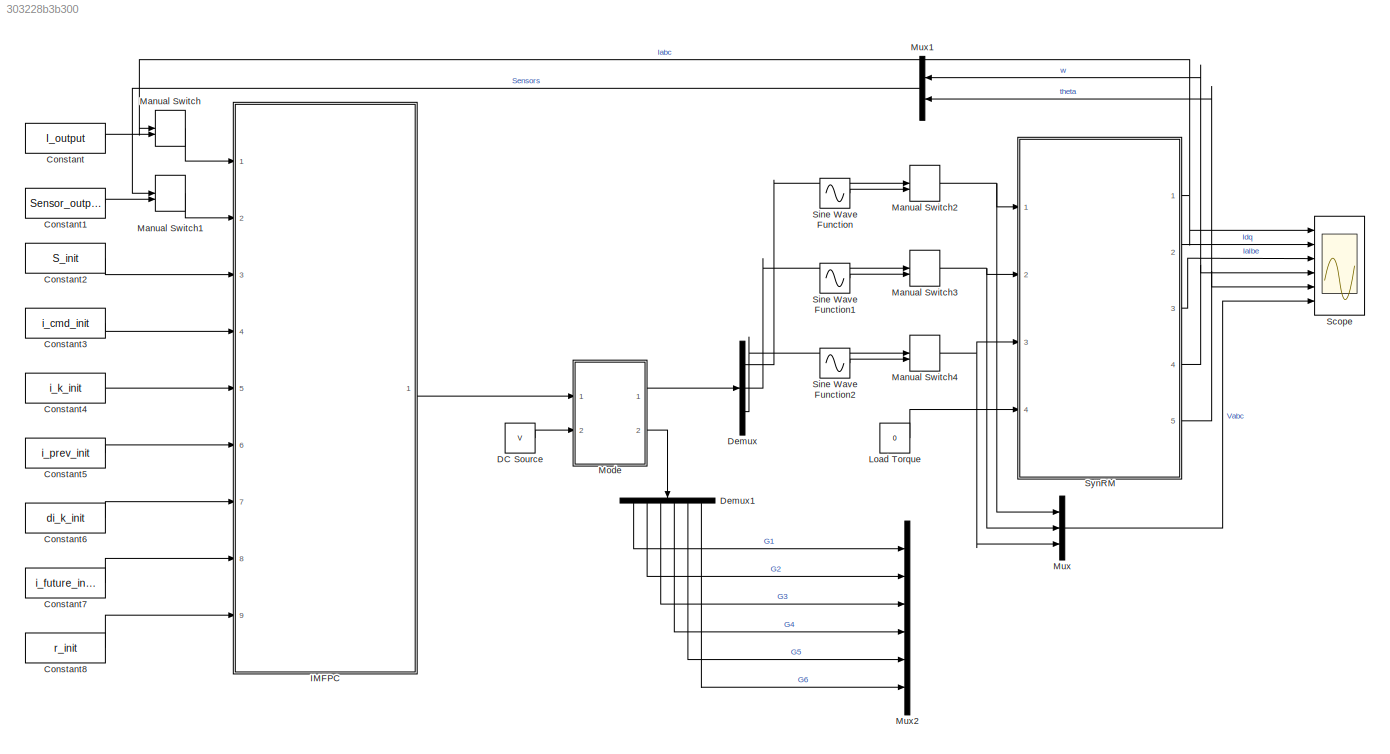
MODEL slx_303228b3b300
KIND model
CONFIG AbsTol = auto
CONFIG FixedStep = 1e-6
CONFIG MaxStep = auto
CONFIG MinStep = auto
CONFIG RelTol = 1e-3
CONFIG SampleTimeConstraint = Unconstrained
CONFIG Solver = VariableStepAuto
CONFIG SolverMode = Auto
CONFIG SolverName = VariableStepAuto
CONFIG StartTime = 0.0
CONFIG StopTime = 5
BLOCK [Constant] Constant
  SampleTime = Ts
  Value = I_output
  VectorParams1D = off
BLOCK [Constant] Constant1
  SampleTime = Ts
  Value = Sensor_output
  VectorParams1D = off
BLOCK [Constant] Constant2
  SampleTime = Ts
  Value = S_init
  VectorParams1D = off
BLOCK [Constant] Constant3
  SampleTime = Ts
  Value = i_cmd_init
  VectorParams1D = off
BLOCK [Constant] Constant4
  SampleTime = Ts
  Value = i_k_init
  VectorParams1D = off
BLOCK [Constant] Constant5
  SampleTime = Ts
  Value = i_prev_init
BLOCK [Constant] Constant6
  SampleTime = Ts
  Value = di_k_init
BLOCK [Constant] Constant7
  SampleTime = Ts
  Value = i_future_init
BLOCK [Constant] Constant8
  SampleTime = Ts
  Value = r_init
BLOCK [Constant] DC Source
  SampleTime = Ts
  Value = V
BLOCK [Demux] Demux
  DisplayOption = bar
  Outputs = 3
  Ports = [1, 3]
BLOCK [Demux] Demux1
  DisplayOption = bar
  Outputs = 6
  Ports = [1, 6]
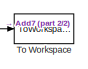
[diagram: IMFPC - part 1/2, top right region]
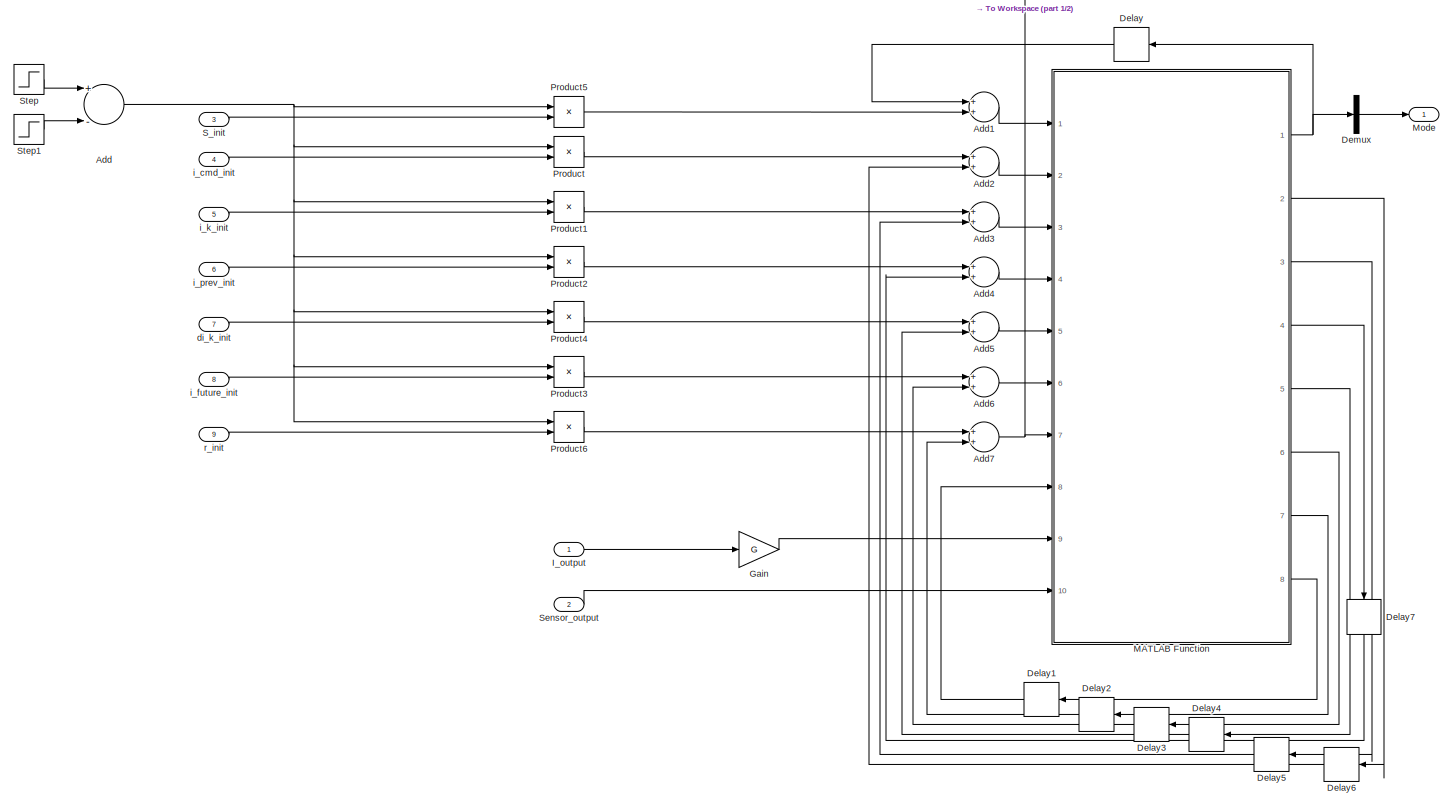
[diagram: IMFPC - part 2/2, most of the canvas]
BLOCK [SubSystem] IMFPC
  Ports = [9, 1]
  RequestExecContextInheritance = off
  Variant = off
BLOCK [Sum] IMFPC/Add
  InputSameDT = off
  Inputs = +-
  OutDataTypeStr = Inherit: Inherit via internal rule
  Ports = [2, 1]
  SaturateOnIntegerOverflow = off
BLOCK [Sum] IMFPC/Add1
  InputSameDT = off
  OutDataTypeStr = Inherit: Inherit via internal rule
  Ports = [2, 1]
  SaturateOnIntegerOverflow = off
BLOCK [Sum] IMFPC/Add2
  InputSameDT = off
  OutDataTypeStr = Inherit: Inherit via internal rule
  Ports = [2, 1]
  SaturateOnIntegerOverflow = off
BLOCK [Sum] IMFPC/Add3
  InputSameDT = off
  OutDataTypeStr = Inherit: Inherit via internal rule
  Ports = [2, 1]
  SaturateOnIntegerOverflow = off
BLOCK [Sum] IMFPC/Add4
  InputSameDT = off
  OutDataTypeStr = Inherit: Inherit via internal rule
  Ports = [2, 1]
  SaturateOnIntegerOverflow = off
BLOCK [Sum] IMFPC/Add5
  InputSameDT = off
  OutDataTypeStr = Inherit: Inherit via internal rule
  Ports = [2, 1]
  SaturateOnIntegerOverflow = off
BLOCK [Sum] IMFPC/Add6
  InputSameDT = off
  OutDataTypeStr = Inherit: Inherit via internal rule
  Ports = [2, 1]
  SaturateOnIntegerOverflow = off
BLOCK [Sum] IMFPC/Add7
  InputSameDT = off
  OutDataTypeStr = Inherit: Inherit via internal rule
  Ports = [2, 1]
  SaturateOnIntegerOverflow = off
BLOCK [Delay] IMFPC/Delay
  DelayLength = 1
  InitialCondition = 0
  InputPortMap = u0
  Ports = [1, 1]
  SampleTime = Ts
BLOCK [Delay] IMFPC/Delay1
  DelayLength = 1
  InitialCondition = 0
  InputPortMap = u0
  Ports = [1, 1]
  SampleTime = Ts
BLOCK [Delay] IMFPC/Delay2
  DelayLength = 1
  InitialCondition = 0
  InputPortMap = u0
  Ports = [1, 1]
  SampleTime = Ts
BLOCK [Delay] IMFPC/Delay3
  DelayLength = 1
  InitialCondition = 0
  InputPortMap = u0
  Ports = [1, 1]
  SampleTime = Ts
BLOCK [Delay] IMFPC/Delay4
  DelayLength = 1
  InitialCondition = 0
  InputPortMap = u0
  Ports = [1, 1]
  SampleTime = Ts
BLOCK [Delay] IMFPC/Delay5
  DelayLength = 1
  InitialCondition = 0
  InputPortMap = u0
  Ports = [1, 1]
  SampleTime = Ts
BLOCK [Delay] IMFPC/Delay6
  DelayLength = 1
  InitialCondition = 0
  InputPortMap = u0
  Ports = [1, 1]
  SampleTime = Ts
BLOCK [Delay] IMFPC/Delay7
  DelayLength = 1
  InitialCondition = 0
  InputPortMap = u0
  Ports = [1, 1]
  SampleTime = Ts
BLOCK [Demux] IMFPC/Demux
  DisplayOption = bar
  Outputs = 3
  Ports = [1, 3]
BLOCK [Gain] IMFPC/Gain
  Gain = G
  Multiplication = Matrix(K*u)
  OutDataTypeStr = Inherit: Inherit via internal rule
  ParamDataTypeStr = Inherit: Inherit via internal rule
  SaturateOnIntegerOverflow = off
BLOCK [Inport] IMFPC/I_output
  IconDisplay = Port number
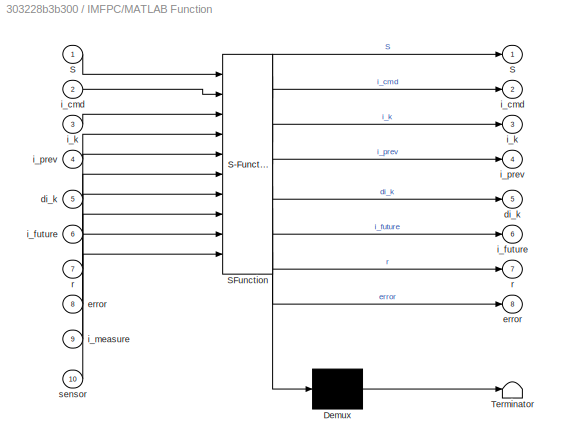
BLOCK [SubSystem] IMFPC/MATLAB Function
  ErrorFcn = Stateflow.Translate.translate
  PermitHierarchicalResolution = ExplicitOnly
  Ports = [10, 8]
  RequestExecContextInheritance = off
  SFBlockType = MATLAB Function
  TreatAsAtomicUnit = on
  Variant = off
BLOCK [Demux] IMFPC/MATLAB Function/ Demux 
  Outputs = 1
  Ports = [1, 1]
BLOCK [S-Function] IMFPC/MATLAB Function/ SFunction 
  EnableBusSupport = on
  FunctionName = sf_sfun
  PortCounts = [10 9]
  Ports = [10, 9]
  SFunctionDeploymentMode = off
  Tag = Stateflow S-Function Simulation 2
BLOCK [Terminator] IMFPC/MATLAB Function/ Terminator 
BLOCK [Outport] IMFPC/MATLAB Function/S
  IconDisplay = Port number
BLOCK [Inport] IMFPC/MATLAB Function/S 
  IconDisplay = Port number
BLOCK [Outport] IMFPC/MATLAB Function/di_k
  IconDisplay = Port number
  Port = 5
BLOCK [Inport] IMFPC/MATLAB Function/di_k 
  IconDisplay = Port number
  Port = 5
BLOCK [Outport] IMFPC/MATLAB Function/error
  IconDisplay = Port number
  Port = 8
BLOCK [Inport] IMFPC/MATLAB Function/error 
  IconDisplay = Port number
  Port = 8
BLOCK [Outport] IMFPC/MATLAB Function/i_cmd
  IconDisplay = Port number
  Port = 2
BLOCK [Inport] IMFPC/MATLAB Function/i_cmd 
  IconDisplay = Port number
  Port = 2
BLOCK [Outport] IMFPC/MATLAB Function/i_future
  IconDisplay = Port number
  Port = 6
BLOCK [Inport] IMFPC/MATLAB Function/i_future 
  IconDisplay = Port number
  Port = 6
BLOCK [Outport] IMFPC/MATLAB Function/i_k
  IconDisplay = Port number
  Port = 3
BLOCK [Inport] IMFPC/MATLAB Function/i_k 
  IconDisplay = Port number
  Port = 3
BLOCK [Inport] IMFPC/MATLAB Function/i_measure
  IconDisplay = Port number
  Port = 9
BLOCK [Outport] IMFPC/MATLAB Function/i_prev
  IconDisplay = Port number
  Port = 4
BLOCK [Inport] IMFPC/MATLAB Function/i_prev 
  IconDisplay = Port number
  Port = 4
BLOCK [Outport] IMFPC/MATLAB Function/r
  IconDisplay = Port number
  Port = 7
BLOCK [Inport] IMFPC/MATLAB Function/r 
  IconDisplay = Port number
  Port = 7
BLOCK [Inport] IMFPC/MATLAB Function/sensor
  IconDisplay = Port number
  Port = 10
BLOCK [Outport] IMFPC/Mode
  IconDisplay = Port number
BLOCK [Product] IMFPC/Product
  InputSameDT = off
  OutDataTypeStr = Inherit: Inherit via internal rule
  Ports = [2, 1]
  RndMeth = Floor
  SaturateOnIntegerOverflow = off
BLOCK [Product] IMFPC/Product1
  InputSameDT = off
  OutDataTypeStr = Inherit: Inherit via internal rule
  Ports = [2, 1]
  RndMeth = Floor
  SaturateOnIntegerOverflow = off
BLOCK [Product] IMFPC/Product2
  InputSameDT = off
  OutDataTypeStr = Inherit: Inherit via internal rule
  Ports = [2, 1]
  RndMeth = Floor
  SaturateOnIntegerOverflow = off
BLOCK [Product] IMFPC/Product3
  InputSameDT = off
  OutDataTypeStr = Inherit: Inherit via internal rule
  Ports = [2, 1]
  RndMeth = Floor
  SaturateOnIntegerOverflow = off
BLOCK [Product] IMFPC/Product4
  InputSameDT = off
  OutDataTypeStr = Inherit: Inherit via internal rule
  Ports = [2, 1]
  RndMeth = Floor
  SaturateOnIntegerOverflow = off
BLOCK [Product] IMFPC/Product5
  InputSameDT = off
  OutDataTypeStr = Inherit: Inherit via internal rule
  Ports = [2, 1]
  RndMeth = Floor
  SaturateOnIntegerOverflow = off
BLOCK [Product] IMFPC/Product6
  InputSameDT = off
  OutDataTypeStr = Inherit: Inherit via internal rule
  Ports = [2, 1]
  RndMeth = Floor
  SaturateOnIntegerOverflow = off
BLOCK [Inport] IMFPC/S_init
  IconDisplay = Port number
  Port = 3
BLOCK [Inport] IMFPC/Sensor_output
  IconDisplay = Port number
  Port = 2
BLOCK [Step] IMFPC/Step
  SampleTime = Ts
  Time = 0
  ZeroCross = off
BLOCK [Step] IMFPC/Step1
  SampleTime = Ts
  Time = Ts
  ZeroCross = off
BLOCK [ToWorkspace] IMFPC/To Workspace
  FixptAsFi = on
  MaxDataPoints = inf
  Ports = [1]
  SampleTime = -1
  Save2DSignal = 3-D array (concatenate along third dimension)
  SaveFormat = Timeseries
  VariableName = r
BLOCK [Inport] IMFPC/di_k_init
  IconDisplay = Port number
  Port = 7
BLOCK [Inport] IMFPC/i_cmd_init
  IconDisplay = Port number
  Port = 4
BLOCK [Inport] IMFPC/i_future_init
  IconDisplay = Port number
  Port = 8
BLOCK [Inport] IMFPC/i_k_init
  IconDisplay = Port number
  Port = 5
BLOCK [Inport] IMFPC/i_prev_init
  IconDisplay = Port number
  Port = 6
BLOCK [Inport] IMFPC/r_init
  IconDisplay = Port number
  Port = 9
BLOCK [Constant] Load Torque 
  SampleTime = 0
  Value = 0
BLOCK [ManualSwitch] Manual Switch
BLOCK [ManualSwitch] Manual Switch1
BLOCK [ManualSwitch] Manual Switch2
BLOCK [ManualSwitch] Manual Switch3
BLOCK [ManualSwitch] Manual Switch4
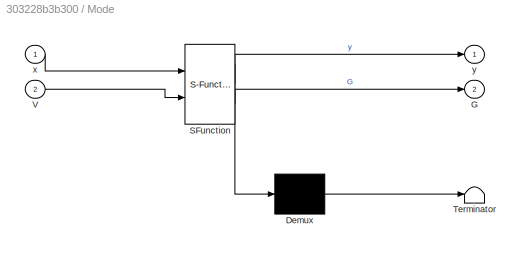
BLOCK [SubSystem] Mode
  ErrorFcn = Stateflow.Translate.translate
  PermitHierarchicalResolution = ExplicitOnly
  Ports = [2, 2]
  RequestExecContextInheritance = off
  SFBlockType = MATLAB Function
  TreatAsAtomicUnit = on
  Variant = off
BLOCK [Demux] Mode/ Demux 
  Outputs = 1
  Ports = [1, 1]
BLOCK [S-Function] Mode/ SFunction 
  EnableBusSupport = on
  FunctionName = sf_sfun
  PortCounts = [2 3]
  Ports = [2, 3]
  SFunctionDeploymentMode = off
  Tag = Stateflow S-Function Simulation 1
BLOCK [Terminator] Mode/ Terminator 
BLOCK [Outport] Mode/G
  IconDisplay = Port number
  Port = 2
BLOCK [Inport] Mode/V
  IconDisplay = Port number
  Port = 2
BLOCK [Inport] Mode/x
  IconDisplay = Port number
BLOCK [Outport] Mode/y
  IconDisplay = Port number
BLOCK [Mux] Mux
  DisplayOption = bar
  Inputs = 3
  Ports = [3, 1]
BLOCK [Mux] Mux1
  DisplayOption = bar
  Inputs = 2
  Ports = [2, 1]
BLOCK [Mux] Mux2
  DisplayOption = bar
  Inputs = 6
  Ports = [6, 1]
BLOCK [Scope] Scope
  NumInputPorts = 6
  Ports = [6]
  ScopeSpecificationString = Simulink.scopes.TimeScopeBlockCfg('CurrentConfiguration', extmgr.ConfigurationSet(extmgr.Configuration('Core','General UI',true),extmgr.Configuration('Core','Source UI',true),extmgr.Configuration('Sources','WiredSimulink',true),extmgr.Configuration('Visuals','Time Domain',true,'SerializedDisplays',{struct('MinYLimReal','-16.36302','MaxYLimReal','14.66493','YLabelReal','','MinYLimMag','0.00000','Ma...<+4851ch>
BLOCK [Sin] Sine Wave Function
  Amplitude = V
  Frequency = 50
  Ports = [0, 1]
  SampleTime = 0
BLOCK [Sin] Sine Wave Function1
  Amplitude = V
  Frequency = 50
  Phase = -2*pi/3
  Ports = [0, 1]
  SampleTime = 0
BLOCK [Sin] Sine Wave Function2
  Amplitude = V
  Frequency = 50
  Phase = 2*pi/3
  Ports = [0, 1]
  SampleTime = 0
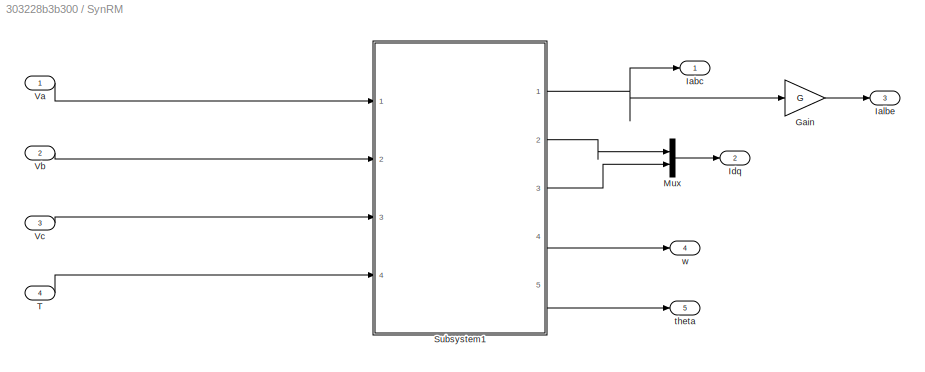
BLOCK [SubSystem] SynRM
  Ports = [4, 5]
  RequestExecContextInheritance = off
  Variant = off
BLOCK [Gain] SynRM/Gain
  Gain = G
  Multiplication = Matrix(K*u)
  OutDataTypeStr = Inherit: Inherit via internal rule
  ParamDataTypeStr = Inherit: Inherit via internal rule
  SaturateOnIntegerOverflow = off
BLOCK [Outport] SynRM/Iabc
  IconDisplay = Port number
BLOCK [Outport] SynRM/Ialbe
  IconDisplay = Port number
  Port = 3
BLOCK [Outport] SynRM/Idq
  IconDisplay = Port number
  Port = 2
BLOCK [Mux] SynRM/Mux
  DisplayOption = bar
  Inputs = 2
  Ports = [2, 1]
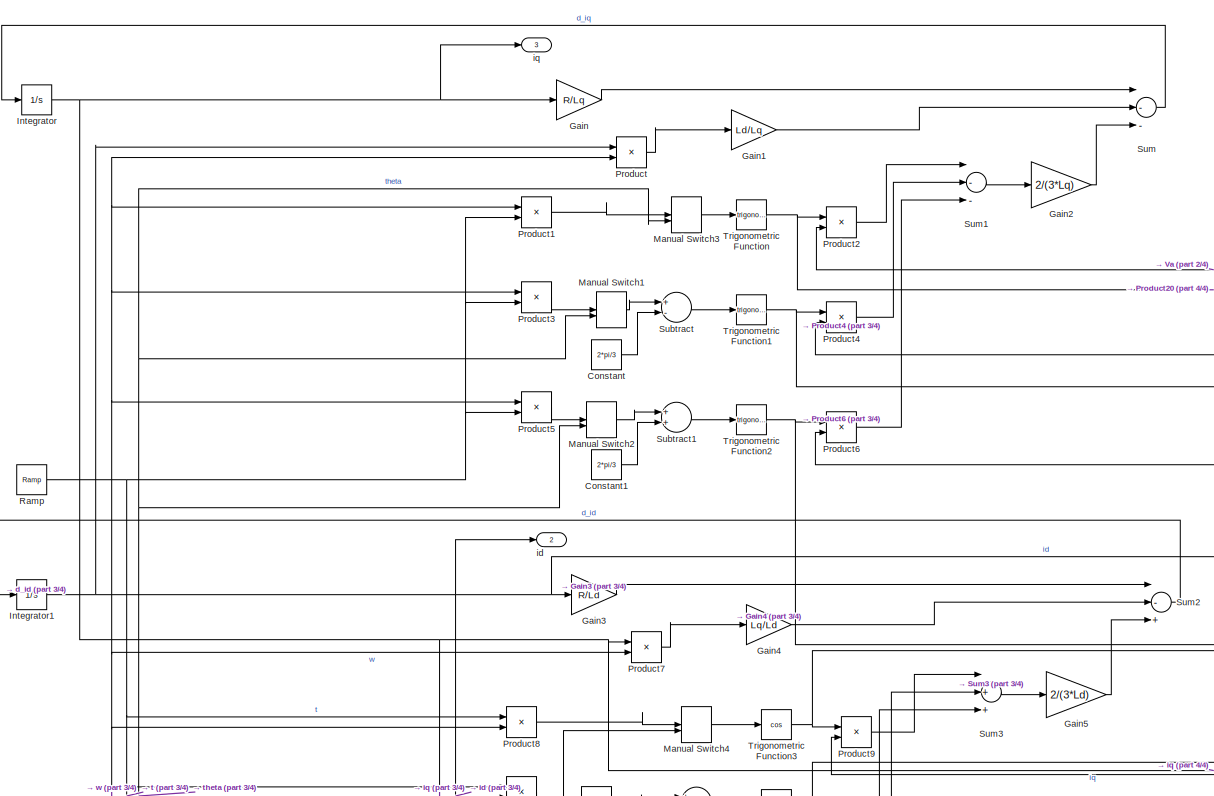
[diagram: SynRM/Subsystem1 - part 1/4, top left region]
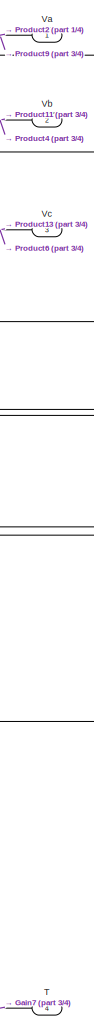
[diagram: SynRM/Subsystem1 - part 2/4, right side, full height]
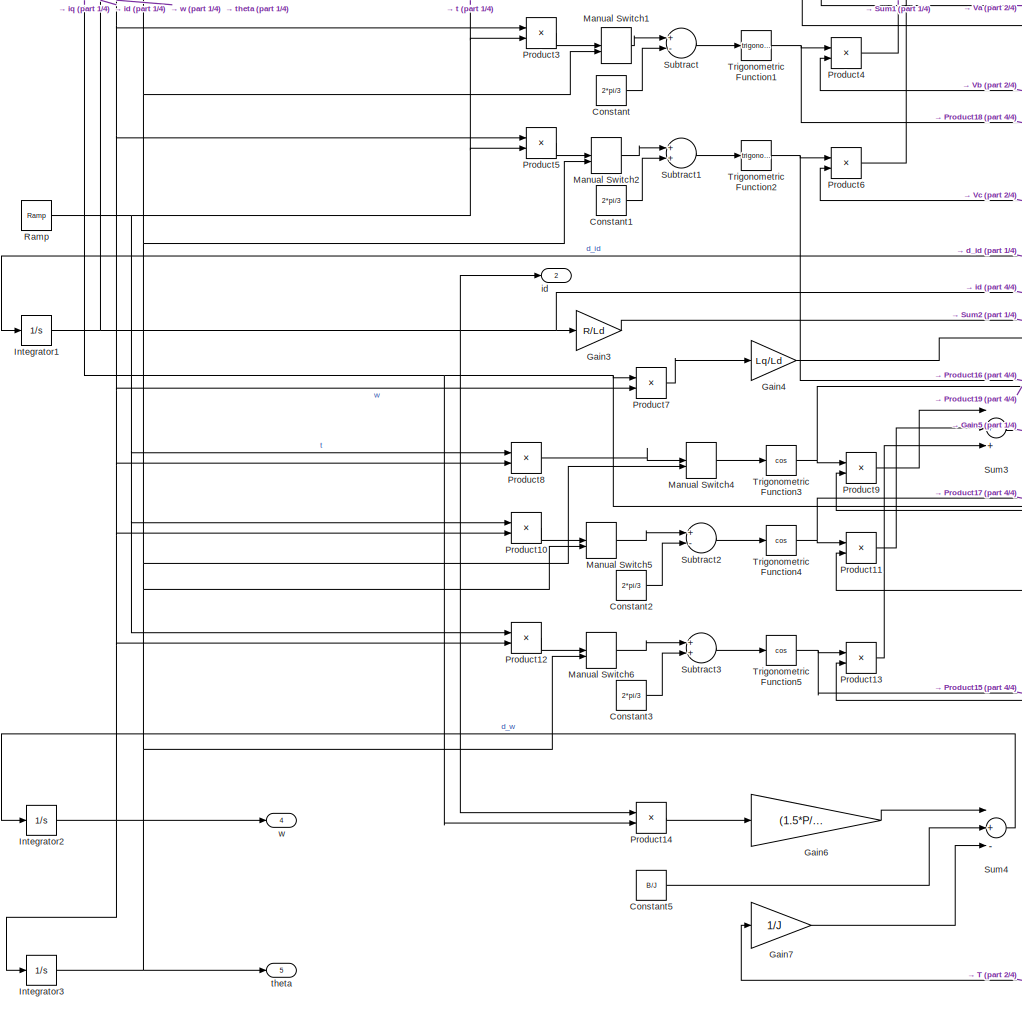
[diagram: SynRM/Subsystem1 - part 3/4, left side, full height]
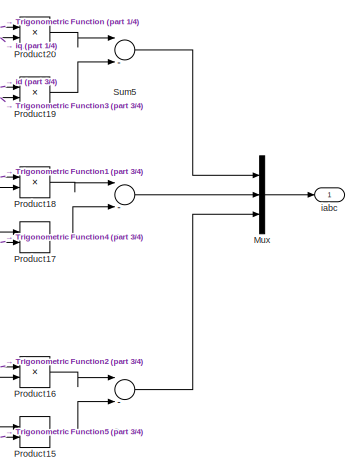
[diagram: SynRM/Subsystem1 - part 4/4, middle right region]
BLOCK [SubSystem] SynRM/Subsystem1
  Ports = [4, 5]
  RequestExecContextInheritance = off
  Variant = off
BLOCK [Constant] SynRM/Subsystem1/Constant
  SampleTime = 0
  Value = 2*pi/3
BLOCK [Constant] SynRM/Subsystem1/Constant1
  SampleTime = 0
  Value = 2*pi/3
BLOCK [Constant] SynRM/Subsystem1/Constant2
  SampleTime = 0
  Value = 2*pi/3
BLOCK [Constant] SynRM/Subsystem1/Constant3
  SampleTime = 0
  Value = 2*pi/3
BLOCK [Constant] SynRM/Subsystem1/Constant5
  SampleTime = 0
  Value = B/J
BLOCK [Gain] SynRM/Subsystem1/Gain
  Gain = R/Lq
  OutDataTypeStr = Inherit: Inherit via internal rule
  ParamDataTypeStr = Inherit: Inherit via internal rule
  SaturateOnIntegerOverflow = off
BLOCK [Gain] SynRM/Subsystem1/Gain1
  Gain = Ld/Lq
  OutDataTypeStr = Inherit: Inherit via internal rule
  ParamDataTypeStr = Inherit: Inherit via internal rule
  SaturateOnIntegerOverflow = off
BLOCK [Gain] SynRM/Subsystem1/Gain2
  Gain = 2/(3*Lq)
  OutDataTypeStr = Inherit: Inherit via internal rule
  ParamDataTypeStr = Inherit: Inherit via internal rule
  SaturateOnIntegerOverflow = off
BLOCK [Gain] SynRM/Subsystem1/Gain3
  Gain = R/Ld
  OutDataTypeStr = Inherit: Inherit via internal rule
  ParamDataTypeStr = Inherit: Inherit via internal rule
  SaturateOnIntegerOverflow = off
BLOCK [Gain] SynRM/Subsystem1/Gain4
  Gain = Lq/Ld
  OutDataTypeStr = Inherit: Inherit via internal rule
  ParamDataTypeStr = Inherit: Inherit via internal rule
  SaturateOnIntegerOverflow = off
BLOCK [Gain] SynRM/Subsystem1/Gain5
  Gain = 2/(3*Ld)
  OutDataTypeStr = Inherit: Inherit via internal rule
  ParamDataTypeStr = Inherit: Inherit via internal rule
  SaturateOnIntegerOverflow = off
BLOCK [Gain] SynRM/Subsystem1/Gain6
  Gain = (1.5*P/J)*(Ld-Lq)
  OutDataTypeStr = Inherit: Inherit via internal rule
  ParamDataTypeStr = Inherit: Inherit via internal rule
  SaturateOnIntegerOverflow = off
BLOCK [Gain] SynRM/Subsystem1/Gain7
  Gain = 1/J
  OutDataTypeStr = Inherit: Inherit via internal rule
  ParamDataTypeStr = Inherit: Inherit via internal rule
  SaturateOnIntegerOverflow = off
BLOCK [Integrator] SynRM/Subsystem1/Integrator
  Ports = [1, 1]
BLOCK [Integrator] SynRM/Subsystem1/Integrator1
  Ports = [1, 1]
BLOCK [Integrator] SynRM/Subsystem1/Integrator2
  Ports = [1, 1]
BLOCK [Integrator] SynRM/Subsystem1/Integrator3
  Ports = [1, 1]
BLOCK [ManualSwitch] SynRM/Subsystem1/Manual Switch1
  CurrentSetting = 0
BLOCK [ManualSwitch] SynRM/Subsystem1/Manual Switch2
  CurrentSetting = 0
BLOCK [ManualSwitch] SynRM/Subsystem1/Manual Switch3
  CurrentSetting = 0
BLOCK [ManualSwitch] SynRM/Subsystem1/Manual Switch4
  CurrentSetting = 0
BLOCK [ManualSwitch] SynRM/Subsystem1/Manual Switch5
  CurrentSetting = 0
BLOCK [ManualSwitch] SynRM/Subsystem1/Manual Switch6
  CurrentSetting = 0
BLOCK [Mux] SynRM/Subsystem1/Mux
  DisplayOption = bar
  Inputs = 3
  Ports = [3, 1]
BLOCK [Product] SynRM/Subsystem1/Product
  InputSameDT = off
  OutDataTypeStr = Inherit: Inherit via internal rule
  Ports = [2, 1]
  RndMeth = Floor
  SaturateOnIntegerOverflow = off
BLOCK [Product] SynRM/Subsystem1/Product1
  InputSameDT = off
  OutDataTypeStr = Inherit: Inherit via internal rule
  Ports = [2, 1]
  RndMeth = Floor
  SaturateOnIntegerOverflow = off
BLOCK [Product] SynRM/Subsystem1/Product10
  InputSameDT = off
  OutDataTypeStr = Inherit: Inherit via internal rule
  Ports = [2, 1]
  RndMeth = Floor
  SaturateOnIntegerOverflow = off
BLOCK [Product] SynRM/Subsystem1/Product11
  InputSameDT = off
  OutDataTypeStr = Inherit: Inherit via internal rule
  Ports = [2, 1]
  RndMeth = Floor
  SaturateOnIntegerOverflow = off
BLOCK [Product] SynRM/Subsystem1/Product12
  InputSameDT = off
  OutDataTypeStr = Inherit: Inherit via internal rule
  Ports = [2, 1]
  RndMeth = Floor
  SaturateOnIntegerOverflow = off
BLOCK [Product] SynRM/Subsystem1/Product13
  InputSameDT = off
  OutDataTypeStr = Inherit: Inherit via internal rule
  Ports = [2, 1]
  RndMeth = Floor
  SaturateOnIntegerOverflow = off
BLOCK [Product] SynRM/Subsystem1/Product14
  InputSameDT = off
  OutDataTypeStr = Inherit: Inherit via internal rule
  Ports = [2, 1]
  RndMeth = Floor
  SaturateOnIntegerOverflow = off
BLOCK [Product] SynRM/Subsystem1/Product15
  InputSameDT = off
  OutDataTypeStr = Inherit: Inherit via internal rule
  Ports = [2, 1]
  RndMeth = Floor
  SaturateOnIntegerOverflow = off
BLOCK [Product] SynRM/Subsystem1/Product16
  InputSameDT = off
  OutDataTypeStr = Inherit: Inherit via internal rule
  Ports = [2, 1]
  RndMeth = Floor
  SaturateOnIntegerOverflow = off
BLOCK [Product] SynRM/Subsystem1/Product17
  InputSameDT = off
  OutDataTypeStr = Inherit: Inherit via internal rule
  Ports = [2, 1]
  RndMeth = Floor
  SaturateOnIntegerOverflow = off
BLOCK [Product] SynRM/Subsystem1/Product18
  InputSameDT = off
  OutDataTypeStr = Inherit: Inherit via internal rule
  Ports = [2, 1]
  RndMeth = Floor
  SaturateOnIntegerOverflow = off
BLOCK [Product] SynRM/Subsystem1/Product19
  InputSameDT = off
  OutDataTypeStr = Inherit: Inherit via internal rule
  Ports = [2, 1]
  RndMeth = Floor
  SaturateOnIntegerOverflow = off
BLOCK [Product] SynRM/Subsystem1/Product2
  InputSameDT = off
  OutDataTypeStr = Inherit: Inherit via internal rule
  Ports = [2, 1]
  RndMeth = Floor
  SaturateOnIntegerOverflow = off
BLOCK [Product] SynRM/Subsystem1/Product20
  InputSameDT = off
  OutDataTypeStr = Inherit: Inherit via internal rule
  Ports = [2, 1]
  RndMeth = Floor
  SaturateOnIntegerOverflow = off
BLOCK [Product] SynRM/Subsystem1/Product3
  InputSameDT = off
  OutDataTypeStr = Inherit: Inherit via internal rule
  Ports = [2, 1]
  RndMeth = Floor
  SaturateOnIntegerOverflow = off
BLOCK [Product] SynRM/Subsystem1/Product4
  InputSameDT = off
  OutDataTypeStr = Inherit: Inherit via internal rule
  Ports = [2, 1]
  RndMeth = Floor
  SaturateOnIntegerOverflow = off
BLOCK [Product] SynRM/Subsystem1/Product5
  InputSameDT = off
  OutDataTypeStr = Inherit: Inherit via internal rule
  Ports = [2, 1]
  RndMeth = Floor
  SaturateOnIntegerOverflow = off
BLOCK [Product] SynRM/Subsystem1/Product6
  InputSameDT = off
  OutDataTypeStr = Inherit: Inherit via internal rule
  Ports = [2, 1]
  RndMeth = Floor
  SaturateOnIntegerOverflow = off
BLOCK [Product] SynRM/Subsystem1/Product7
  InputSameDT = off
  OutDataTypeStr = Inherit: Inherit via internal rule
  Ports = [2, 1]
  RndMeth = Floor
  SaturateOnIntegerOverflow = off
BLOCK [Product] SynRM/Subsystem1/Product8
  InputSameDT = off
  OutDataTypeStr = Inherit: Inherit via internal rule
  Ports = [2, 1]
  RndMeth = Floor
  SaturateOnIntegerOverflow = off
BLOCK [Product] SynRM/Subsystem1/Product9
  InputSameDT = off
  OutDataTypeStr = Inherit: Inherit via internal rule
  Ports = [2, 1]
  RndMeth = Floor
  SaturateOnIntegerOverflow = off
BLOCK [Reference] SynRM/Subsystem1/Ramp  REF=simulink/Sources/Ramp
  Ports = [0, 1]
  SourceBlock = simulink/Sources/Ramp
  SourceType = Ramp
BLOCK [Sum] SynRM/Subsystem1/Subtract
  InputSameDT = off
  Inputs = +-
  OutDataTypeStr = Inherit: Inherit via internal rule
  Ports = [2, 1]
  SaturateOnIntegerOverflow = off
BLOCK [Sum] SynRM/Subsystem1/Subtract1
  InputSameDT = off
  OutDataTypeStr = Inherit: Inherit via internal rule
  Ports = [2, 1]
  SaturateOnIntegerOverflow = off
BLOCK [Sum] SynRM/Subsystem1/Subtract2
  InputSameDT = off
  Inputs = +-
  OutDataTypeStr = Inherit: Inherit via internal rule
  Ports = [2, 1]
  SaturateOnIntegerOverflow = off
BLOCK [Sum] SynRM/Subsystem1/Subtract3
  InputSameDT = off
  OutDataTypeStr = Inherit: Inherit via internal rule
  Ports = [2, 1]
  SaturateOnIntegerOverflow = off
BLOCK [Sum] SynRM/Subsystem1/Sum
  InputSameDT = off
  Inputs = |--+
  OutDataTypeStr = Inherit: Inherit via internal rule
  Ports = [3, 1]
  SaturateOnIntegerOverflow = off
BLOCK [Sum] SynRM/Subsystem1/Sum1
  InputSameDT = off
  Inputs = |---
  OutDataTypeStr = Inherit: Inherit via internal rule
  Ports = [3, 1]
  SaturateOnIntegerOverflow = off
BLOCK [Sum] SynRM/Subsystem1/Sum2
  InputSameDT = off
  Inputs = |-++
  OutDataTypeStr = Inherit: Inherit via internal rule
  Ports = [3, 1]
  SaturateOnIntegerOverflow = off
BLOCK [Sum] SynRM/Subsystem1/Sum3
  InputSameDT = off
  Inputs = |+++
  OutDataTypeStr = Inherit: Inherit via internal rule
  Ports = [3, 1]
  SaturateOnIntegerOverflow = off
BLOCK [Sum] SynRM/Subsystem1/Sum4
  InputSameDT = off
  Inputs = |+--
  OutDataTypeStr = Inherit: Inherit via internal rule
  Ports = [3, 1]
  SaturateOnIntegerOverflow = off
BLOCK [Sum] SynRM/Subsystem1/Sum5
  InputSameDT = off
  Inputs = |-+
  OutDataTypeStr = Inherit: Inherit via internal rule
  Ports = [2, 1]
  SaturateOnIntegerOverflow = off
BLOCK [Sum] SynRM/Subsystem1/Sum6
  InputSameDT = off
  Inputs = |-+
  OutDataTypeStr = Inherit: Inherit via internal rule
  Ports = [2, 1]
  SaturateOnIntegerOverflow = off
BLOCK [Sum] SynRM/Subsystem1/Sum7
  InputSameDT = off
  Inputs = |-+
  OutDataTypeStr = Inherit: Inherit via internal rule
  Ports = [2, 1]
  SaturateOnIntegerOverflow = off
BLOCK [Inport] SynRM/Subsystem1/T
  IconDisplay = Port number
  Port = 4
BLOCK [Trigonometry] SynRM/Subsystem1/Trigonometric Function
  Ports = [1, 1]
BLOCK [Trigonometry] SynRM/Subsystem1/Trigonometric Function1
  Ports = [1, 1]
BLOCK [Trigonometry] SynRM/Subsystem1/Trigonometric Function2
  Ports = [1, 1]
BLOCK [Trigonometry] SynRM/Subsystem1/Trigonometric Function3
  Operator = cos
  Ports = [1, 1]
BLOCK [Trigonometry] SynRM/Subsystem1/Trigonometric Function4
  Operator = cos
  Ports = [1, 1]
BLOCK [Trigonometry] SynRM/Subsystem1/Trigonometric Function5
  Operator = cos
  Ports = [1, 1]
BLOCK [Inport] SynRM/Subsystem1/Va
  IconDisplay = Port number
BLOCK [Inport] SynRM/Subsystem1/Vb
  IconDisplay = Port number
  Port = 2
BLOCK [Inport] SynRM/Subsystem1/Vc
  IconDisplay = Port number
  Port = 3
BLOCK [Outport] SynRM/Subsystem1/iabc
  IconDisplay = Port number
BLOCK [Outport] SynRM/Subsystem1/id
  IconDisplay = Port number
  Port = 2
BLOCK [Outport] SynRM/Subsystem1/iq
  IconDisplay = Port number
  Port = 3
BLOCK [Outport] SynRM/Subsystem1/theta
  IconDisplay = Port number
  Port = 5
BLOCK [Outport] SynRM/Subsystem1/w
  IconDisplay = Port number
  Port = 4
BLOCK [Inport] SynRM/T
  IconDisplay = Port number
  Port = 4
BLOCK [Inport] SynRM/Va
  IconDisplay = Port number
BLOCK [Inport] SynRM/Vb
  IconDisplay = Port number
  Port = 2
BLOCK [Inport] SynRM/Vc
  IconDisplay = Port number
  Port = 3
BLOCK [Outport] SynRM/theta
  IconDisplay = Port number
  Port = 5
BLOCK [Outport] SynRM/w
  IconDisplay = Port number
  Port = 4
LINE Constant1:1 -> Manual Switch1:2
LINE Constant2:1 -> IMFPC:3
LINE Constant3:1 -> IMFPC:4
LINE Constant4:1 -> IMFPC:5
LINE Constant5:1 -> IMFPC:6
LINE Constant6:1 -> IMFPC:7
LINE Constant7:1 -> IMFPC:8
LINE Constant8:1 -> IMFPC:9
LINE Constant:1 -> Manual Switch:2
LINE DC Source:1 -> Mode:2
LINE Demux1:1 -> Mux2:1
LINE Demux1:2 -> Mux2:2
LINE Demux1:3 -> Mux2:3
LINE Demux1:4 -> Mux2:4
LINE Demux1:5 -> Mux2:5
LINE Demux1:6 -> Mux2:6
LINE Demux:1 -> Manual Switch2:1
LINE Demux:2 -> Manual Switch3:1
LINE Demux:3 -> Manual Switch4:1
LINE IMFPC/Add1:1 -> IMFPC/MATLAB Function:1
LINE IMFPC/Add2:1 -> IMFPC/MATLAB Function:2
LINE IMFPC/Add3:1 -> IMFPC/MATLAB Function:3
LINE IMFPC/Add4:1 -> IMFPC/MATLAB Function:4
LINE IMFPC/Add5:1 -> IMFPC/MATLAB Function:5
LINE IMFPC/Add6:1 -> IMFPC/MATLAB Function:6
NET IMFPC/Add7:1 -> IMFPC/MATLAB Function:7, IMFPC/To Workspace:1
NET IMFPC/Add:1 -> IMFPC/Product1:1, IMFPC/Product2:1, IMFPC/Product3:1, IMFPC/Product4:1, IMFPC/Product5:1, IMFPC/Product6:1, IMFPC/Product:1
LINE IMFPC/Delay1:1 -> IMFPC/MATLAB Function:8
LINE IMFPC/Delay2:1 -> IMFPC/Add7:2
LINE IMFPC/Delay3:1 -> IMFPC/Add6:2
LINE IMFPC/Delay4:1 -> IMFPC/Add5:2
LINE IMFPC/Delay5:1 -> IMFPC/Add3:2
LINE IMFPC/Delay6:1 -> IMFPC/Add2:2
LINE IMFPC/Delay7:1 -> IMFPC/Add4:2
LINE IMFPC/Delay:1 -> IMFPC/Add1:1
LINE IMFPC/Demux:2 -> IMFPC/Mode:1
LINE IMFPC/Gain:1 -> IMFPC/MATLAB Function:9
LINE IMFPC/I_output:1 -> IMFPC/Gain:1
NET IMFPC/MATLAB Function:1 -> IMFPC/Delay:1, IMFPC/Demux:1
LINE IMFPC/MATLAB Function:2 -> IMFPC/Delay6:1
LINE IMFPC/MATLAB Function:3 -> IMFPC/Delay5:1
LINE IMFPC/MATLAB Function:4 -> IMFPC/Delay7:1
LINE IMFPC/MATLAB Function:5 -> IMFPC/Delay4:1
LINE IMFPC/MATLAB Function:6 -> IMFPC/Delay3:1
LINE IMFPC/MATLAB Function:7 -> IMFPC/Delay2:1
LINE IMFPC/MATLAB Function:8 -> IMFPC/Delay1:1
LINE IMFPC/Product1:1 -> IMFPC/Add3:1
LINE IMFPC/Product2:1 -> IMFPC/Add4:1
LINE IMFPC/Product3:1 -> IMFPC/Add6:1
LINE IMFPC/Product4:1 -> IMFPC/Add5:1
LINE IMFPC/Product5:1 -> IMFPC/Add1:2
LINE IMFPC/Product6:1 -> IMFPC/Add7:1
LINE IMFPC/Product:1 -> IMFPC/Add2:1
LINE IMFPC/S_init:1 -> IMFPC/Product5:2
LINE IMFPC/Sensor_output:1 -> IMFPC/MATLAB Function:10
LINE IMFPC/Step1:1 -> IMFPC/Add:2
LINE IMFPC/Step:1 -> IMFPC/Add:1
LINE IMFPC/di_k_init:1 -> IMFPC/Product4:2
LINE IMFPC/i_cmd_init:1 -> IMFPC/Product:2
LINE IMFPC/i_future_init:1 -> IMFPC/Product3:2
LINE IMFPC/i_k_init:1 -> IMFPC/Product1:2
LINE IMFPC/i_prev_init:1 -> IMFPC/Product2:2
LINE IMFPC/r_init:1 -> IMFPC/Product6:2
LINE IMFPC:1 -> Mode:1
LINE Load Torque :1 -> SynRM:4
LINE Manual Switch1:1 -> IMFPC:2
NET Manual Switch2:1 -> Mux:1, SynRM:1
NET Manual Switch3:1 -> Mux:2, SynRM:2
NET Manual Switch4:1 -> Mux:3, SynRM:3
LINE Manual Switch:1 -> IMFPC:1
LINE Mode:1 -> Demux:1
LINE Mode:2 -> Demux1:1
LINE Mux1:1 -> Manual Switch1:1
LINE Mux:1 -> Scope:6
LINE Sine Wave Function1:1 -> Manual Switch3:2
LINE Sine Wave Function2:1 -> Manual Switch4:2
LINE Sine Wave Function:1 -> Manual Switch2:2
LINE SynRM/Gain:1 -> SynRM/Ialbe:1
LINE SynRM/Mux:1 -> SynRM/Idq:1
LINE SynRM/Subsystem1/Constant1:1 -> SynRM/Subsystem1/Subtract1:2
LINE SynRM/Subsystem1/Constant2:1 -> SynRM/Subsystem1/Subtract2:2
LINE SynRM/Subsystem1/Constant3:1 -> SynRM/Subsystem1/Subtract3:2
LINE SynRM/Subsystem1/Constant5:1 -> SynRM/Subsystem1/Sum4:2
LINE SynRM/Subsystem1/Constant:1 -> SynRM/Subsystem1/Subtract:2
LINE SynRM/Subsystem1/Gain1:1 -> SynRM/Subsystem1/Sum:2
LINE SynRM/Subsystem1/Gain2:1 -> SynRM/Subsystem1/Sum:3
LINE SynRM/Subsystem1/Gain3:1 -> SynRM/Subsystem1/Sum2:1
LINE SynRM/Subsystem1/Gain4:1 -> SynRM/Subsystem1/Sum2:2
LINE SynRM/Subsystem1/Gain5:1 -> SynRM/Subsystem1/Sum2:3
LINE SynRM/Subsystem1/Gain6:1 -> SynRM/Subsystem1/Sum4:1
LINE SynRM/Subsystem1/Gain7:1 -> SynRM/Subsystem1/Sum4:3
LINE SynRM/Subsystem1/Gain:1 -> SynRM/Subsystem1/Sum:1
NET SynRM/Subsystem1/Integrator1:1 -> SynRM/Subsystem1/Gain3:1, SynRM/Subsystem1/Product14:1, SynRM/Subsystem1/Product15:1, SynRM/Subsystem1/Product17:1, SynRM/Subsystem1/Product19:1, SynRM/Subsystem1/Product:1, SynRM/Subsystem1/id:1
NET SynRM/Subsystem1/Integrator2:1 -> SynRM/Subsystem1/Integrator3:1, SynRM/Subsystem1/Product10:2, SynRM/Subsystem1/Product12:2, SynRM/Subsystem1/Product1:1, SynRM/Subsystem1/Product3:1, SynRM/Subsystem1/Product5:1, SynRM/Subsystem1/Product7:2, SynRM/Subsystem1/Product8:2, SynRM/Subsystem1/Product:2, SynRM/Subsystem1/w:1
NET SynRM/Subsystem1/Integrator3:1 -> SynRM/Subsystem1/Manual Switch1:2, SynRM/Subsystem1/Manual Switch2:2, SynRM/Subsystem1/Manual Switch3:2, SynRM/Subsystem1/Manual Switch4:2, SynRM/Subsystem1/Manual Switch5:2, SynRM/Subsystem1/Manual Switch6:2, SynRM/Subsystem1/theta:1
NET SynRM/Subsystem1/Integrator:1 -> SynRM/Subsystem1/Gain:1, SynRM/Subsystem1/Product14:2, SynRM/Subsystem1/Product16:2, SynRM/Subsystem1/Product18:2, SynRM/Subsystem1/Product20:2, SynRM/Subsystem1/Product7:1, SynRM/Subsystem1/iq:1
LINE SynRM/Subsystem1/Manual Switch1:1 -> SynRM/Subsystem1/Subtract:1
LINE SynRM/Subsystem1/Manual Switch2:1 -> SynRM/Subsystem1/Subtract1:1
LINE SynRM/Subsystem1/Manual Switch3:1 -> SynRM/Subsystem1/Trigonometric Function:1
LINE SynRM/Subsystem1/Manual Switch4:1 -> SynRM/Subsystem1/Trigonometric Function3:1
LINE SynRM/Subsystem1/Manual Switch5:1 -> SynRM/Subsystem1/Subtract2:1
LINE SynRM/Subsystem1/Manual Switch6:1 -> SynRM/Subsystem1/Subtract3:1
LINE SynRM/Subsystem1/Mux:1 -> SynRM/Subsystem1/iabc:1
LINE SynRM/Subsystem1/Product10:1 -> SynRM/Subsystem1/Manual Switch5:1
LINE SynRM/Subsystem1/Product11:1 -> SynRM/Subsystem1/Sum3:2
LINE SynRM/Subsystem1/Product12:1 -> SynRM/Subsystem1/Manual Switch6:1
LINE SynRM/Subsystem1/Product13:1 -> SynRM/Subsystem1/Sum3:3
LINE SynRM/Subsystem1/Product14:1 -> SynRM/Subsystem1/Gain6:1
LINE SynRM/Subsystem1/Product15:1 -> SynRM/Subsystem1/Sum7:2
LINE SynRM/Subsystem1/Product16:1 -> SynRM/Subsystem1/Sum7:1
LINE SynRM/Subsystem1/Product17:1 -> SynRM/Subsystem1/Sum6:2
LINE SynRM/Subsystem1/Product18:1 -> SynRM/Subsystem1/Sum6:1
LINE SynRM/Subsystem1/Product19:1 -> SynRM/Subsystem1/Sum5:2
LINE SynRM/Subsystem1/Product1:1 -> SynRM/Subsystem1/Manual Switch3:1
LINE SynRM/Subsystem1/Product20:1 -> SynRM/Subsystem1/Sum5:1
LINE SynRM/Subsystem1/Product2:1 -> SynRM/Subsystem1/Sum1:1
LINE SynRM/Subsystem1/Product3:1 -> SynRM/Subsystem1/Manual Switch1:1
LINE SynRM/Subsystem1/Product4:1 -> SynRM/Subsystem1/Sum1:2
LINE SynRM/Subsystem1/Product5:1 -> SynRM/Subsystem1/Manual Switch2:1
LINE SynRM/Subsystem1/Product6:1 -> SynRM/Subsystem1/Sum1:3
LINE SynRM/Subsystem1/Product7:1 -> SynRM/Subsystem1/Gain4:1
LINE SynRM/Subsystem1/Product8:1 -> SynRM/Subsystem1/Manual Switch4:1
LINE SynRM/Subsystem1/Product9:1 -> SynRM/Subsystem1/Sum3:1
LINE SynRM/Subsystem1/Product:1 -> SynRM/Subsystem1/Gain1:1
NET SynRM/Subsystem1/Ramp:1 -> SynRM/Subsystem1/Product10:1, SynRM/Subsystem1/Product12:1, SynRM/Subsystem1/Product1:2, SynRM/Subsystem1/Product3:2, SynRM/Subsystem1/Product5:2, SynRM/Subsystem1/Product8:1
LINE SynRM/Subsystem1/Subtract1:1 -> SynRM/Subsystem1/Trigonometric Function2:1
LINE SynRM/Subsystem1/Subtract2:1 -> SynRM/Subsystem1/Trigonometric Function4:1
LINE SynRM/Subsystem1/Subtract3:1 -> SynRM/Subsystem1/Trigonometric Function5:1
LINE SynRM/Subsystem1/Subtract:1 -> SynRM/Subsystem1/Trigonometric Function1:1
LINE SynRM/Subsystem1/Sum1:1 -> SynRM/Subsystem1/Gain2:1
LINE SynRM/Subsystem1/Sum2:1 -> SynRM/Subsystem1/Integrator1:1
LINE SynRM/Subsystem1/Sum3:1 -> SynRM/Subsystem1/Gain5:1
LINE SynRM/Subsystem1/Sum4:1 -> SynRM/Subsystem1/Integrator2:1
LINE SynRM/Subsystem1/Sum5:1 -> SynRM/Subsystem1/Mux:1
LINE SynRM/Subsystem1/Sum6:1 -> SynRM/Subsystem1/Mux:2
LINE SynRM/Subsystem1/Sum7:1 -> SynRM/Subsystem1/Mux:3
LINE SynRM/Subsystem1/Sum:1 -> SynRM/Subsystem1/Integrator:1
LINE SynRM/Subsystem1/T:1 -> SynRM/Subsystem1/Gain7:1
NET SynRM/Subsystem1/Trigonometric Function1:1 -> SynRM/Subsystem1/Product18:1, SynRM/Subsystem1/Product4:1
NET SynRM/Subsystem1/Trigonometric Function2:1 -> SynRM/Subsystem1/Product16:1, SynRM/Subsystem1/Product6:1
NET SynRM/Subsystem1/Trigonometric Function3:1 -> SynRM/Subsystem1/Product19:2, SynRM/Subsystem1/Product9:1
NET SynRM/Subsystem1/Trigonometric Function4:1 -> SynRM/Subsystem1/Product11:1, SynRM/Subsystem1/Product17:2
NET SynRM/Subsystem1/Trigonometric Function5:1 -> SynRM/Subsystem1/Product13:1, SynRM/Subsystem1/Product15:2
NET SynRM/Subsystem1/Trigonometric Function:1 -> SynRM/Subsystem1/Product20:1, SynRM/Subsystem1/Product2:1
NET SynRM/Subsystem1/Va:1 -> SynRM/Subsystem1/Product2:2, SynRM/Subsystem1/Product9:2
NET SynRM/Subsystem1/Vb:1 -> SynRM/Subsystem1/Product11:2, SynRM/Subsystem1/Product4:2
NET SynRM/Subsystem1/Vc:1 -> SynRM/Subsystem1/Product13:2, SynRM/Subsystem1/Product6:2
NET SynRM/Subsystem1:1 -> SynRM/Gain:1, SynRM/Iabc:1
LINE SynRM/Subsystem1:2 -> SynRM/Mux:1
LINE SynRM/Subsystem1:3 -> SynRM/Mux:2
LINE SynRM/Subsystem1:4 -> SynRM/w:1
LINE SynRM/Subsystem1:5 -> SynRM/theta:1
LINE SynRM/T:1 -> SynRM/Subsystem1:4
LINE SynRM/Va:1 -> SynRM/Subsystem1:1
LINE SynRM/Vb:1 -> SynRM/Subsystem1:2
LINE SynRM/Vc:1 -> SynRM/Subsystem1:3
NET SynRM:1 -> Manual Switch:1, Scope:1
LINE SynRM:2 -> Scope:2
LINE SynRM:3 -> Scope:3
NET SynRM:4 -> Mux1:1, Scope:4
NET SynRM:5 -> Mux1:2, Scope:5
note: NET lines group one-source signal fan-out (src -> all destinations, sorted); 1:1 wires keep LINE
CHART Mode states=1 transitions=1
  STATE_LABEL 'eML_blk_kernel()'
  STATE_LABEL 'SCRIPT:\nfunction [y, G]=Mode(x, V)\n\nswitch x\n    case 1\n        y=[0; 0; 0];\n        G=[0; 1; 0; 1; 0; 1];\n    case 2\n        y=[2*V/3; -V/3; -V/3];\n        G=[1; 0; 0; 1; 0; 1];\n    case 3\n        y=[-2*V/3; V/3; V/3];\n        G=[0; 1; 1; 0; 1; 0];\n    case 4\n        y=[-V/3; 2*V/3; -V/3];\n        G=[0; 1; 1; 0; 0; 1];\n    case 5\n        y=[V/3; -2*V/3; V/3];\n        G=[1; 0; 0; 1; 1; 0];\n    cas...<+320ch>'
CHART IMFPC/MATLAB Function states=1 transitions=1
  STATE_LABEL 'eML_blk_kernel()'
  STATE_LABEL 'SCRIPT:\n%% Details about the algorithm IMPFC\n% 1) S is a vector. S(1)=Present mode, S(2)=Mode to be applied, S(3)=Mode calculated\n% 2) i_cmd is a matrix. i_cmd(a, 1)=i*(k), i_cmd(a, 2)=i*(k-1), i_cmd(a, 3)=i*(k-2)\n%    a=1 means alpha, a=2 means beta.\n% 3) i_k is a matrix. i_k(a, b) are the predicted values at present instant.\n%    a=1 means alpha, a=2 means beta, b represents the conducting mode....<+1866ch>'
